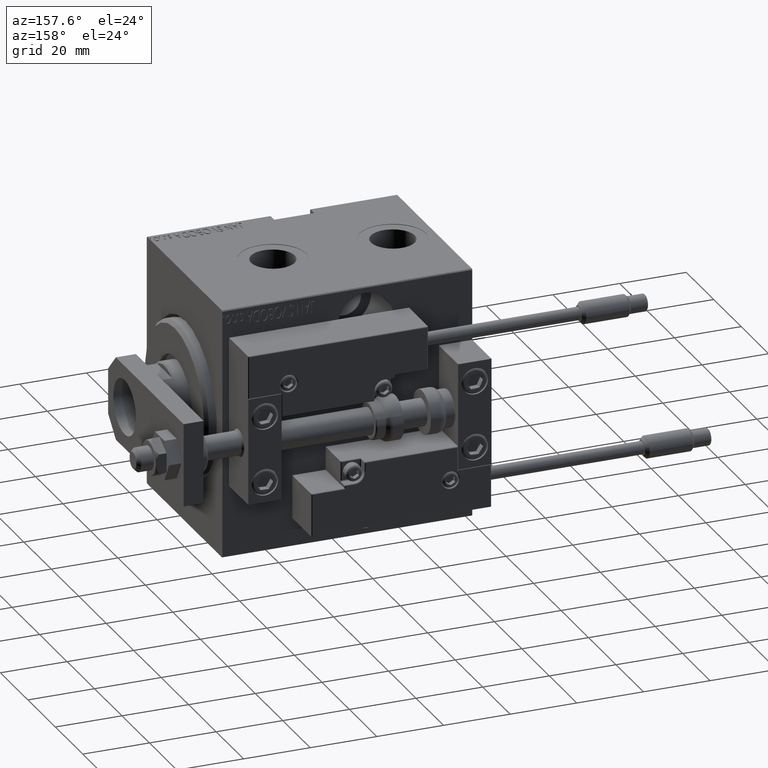
[diagram: clean part render]
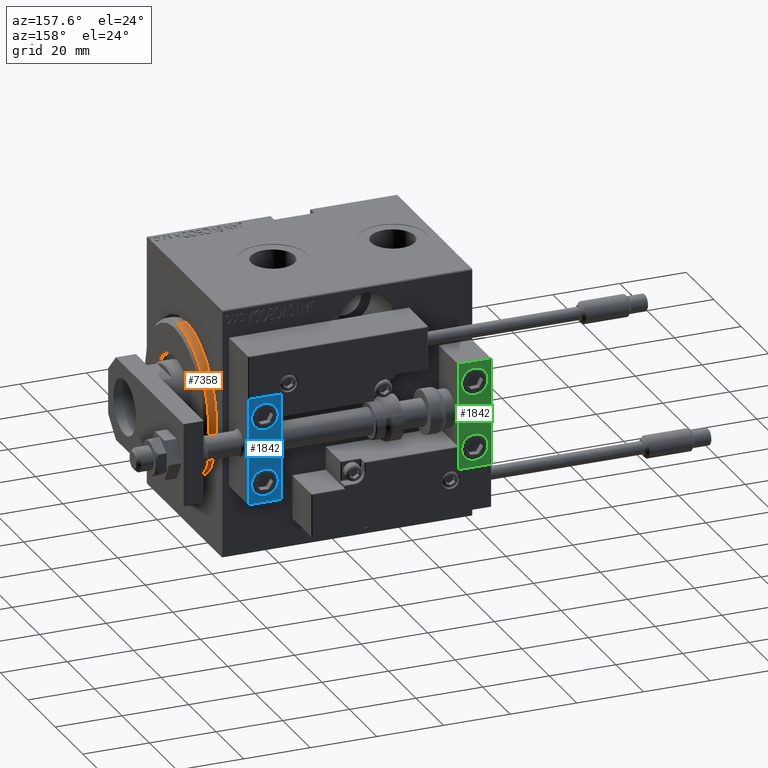
[diagram: same view with three faces highlighted in distinct colors, each labeled with its STEP entity id]
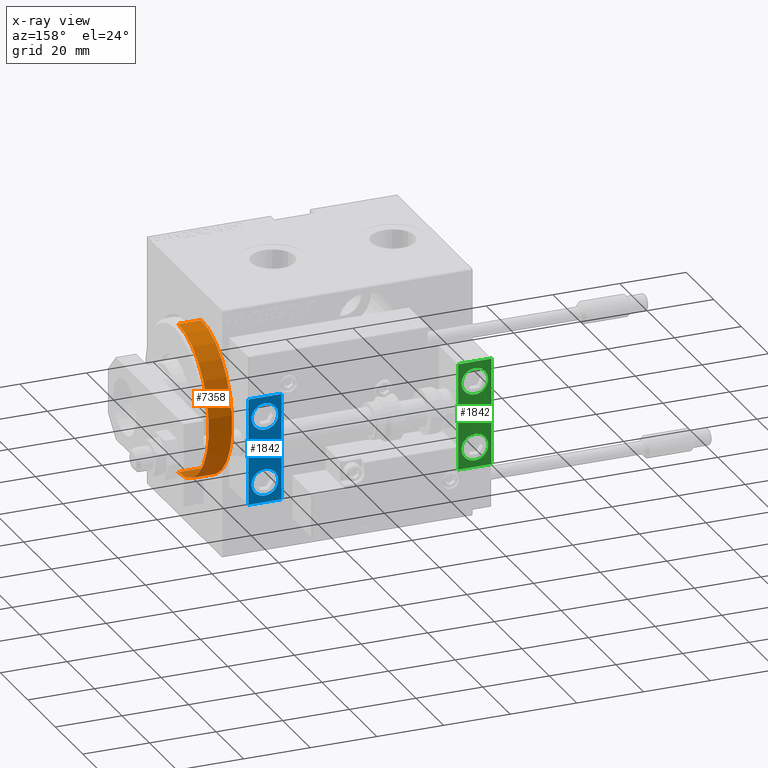
[diagram: x-ray of the same camera — body ghosted, the three highlighted faces saturated]
A machine part, auxiliary view with three faces highlighted in distinct colors.
The next image is the same camera in x-ray (body ghosted, the three faces saturated) — at least one of them is partly hidden behind the body in this view.
Their STEP definitions:

[orange] entity #7358 — the highlighted cylindrical surface (partial cylindrical patch) has radius 22.5 mm, axis along (-1, -0, -0).
#305 = CARTESIAN_POINT ( 'NONE',  ( -5.000000000000000000, 0.000000000000000000, 22.50000000000000355 ) ) ;
#1200 = AXIS2_PLACEMENT_3D ( 'NONE', #38556, #22485, #41922 ) ;
#1784 = ORIENTED_EDGE ( 'NONE', *, *, #48581, .T. ) ;
#5462 = CARTESIAN_POINT ( 'NONE',  ( 2.000000000000006217, 2.755455298081545172E-15, -22.50000000000000355 ) ) ;
#5526 = EDGE_CURVE ( 'NONE', #10065, #48900, #38126, .T. ) ;
#7358 = ADVANCED_FACE ( 'NONE', ( #15023 ), #31580, .T. ) ;
#9229 = AXIS2_PLACEMENT_3D ( 'NONE', #26687, #43495, #47113 ) ;
#9852 = VECTOR ( 'NONE', #21482, 1000.000000000000000 ) ;
#10065 = VERTEX_POINT ( 'NONE', #43915 ) ;
#15023 = FACE_OUTER_BOUND ( 'NONE', #46883, .T. ) ;
#15812 = CARTESIAN_POINT ( 'NONE',  ( -5.000000000000000000, 0.000000000000000000, 0.000000000000000000 ) ) ;
#21482 = DIRECTION ( 'NONE',  ( -1.000000000000000000, -0.000000000000000000, -0.000000000000000000 ) ) ;
#22425 = ORIENTED_EDGE ( 'NONE', *, *, #29248, .T. ) ;
#22485 = DIRECTION ( 'NONE',  ( -1.000000000000000000, 0.000000000000000000, 0.000000000000000000 ) ) ;
#25883 = CARTESIAN_POINT ( 'NONE',  ( 3.000000000000000000, 2.755455298081545172E-15, -22.50000000000000355 ) ) ;
#26068 = CARTESIAN_POINT ( 'NONE',  ( 2.000000000000006217, 0.000000000000000000, 22.50000000000000355 ) ) ;
#26687 = CARTESIAN_POINT ( 'NONE',  ( 3.000000000000000000, 0.000000000000000000, 0.000000000000000000 ) ) ;
#27146 = VERTEX_POINT ( 'NONE', #5462 ) ;
#27631 = DIRECTION ( 'NONE',  ( -1.000000000000000000, -0.000000000000000000, -0.000000000000000000 ) ) ;
#28407 = LINE ( 'NONE', #47303, #36505 ) ;
#29248 = EDGE_CURVE ( 'NONE', #27146, #10065, #49178, .T. ) ;
#29825 = AXIS2_PLACEMENT_3D ( 'NONE', #15812, #31600, #34998 ) ;
#31580 = CYLINDRICAL_SURFACE ( 'NONE', #9229, 22.50000000000000355 ) ;
#31600 = DIRECTION ( 'NONE',  ( 1.000000000000000000, 0.000000000000000000, 0.000000000000000000 ) ) ;
#34998 = DIRECTION ( 'NONE',  ( 0.000000000000000000, 0.000000000000000000, -1.000000000000000000 ) ) ;
#36505 = VECTOR ( 'NONE', #27631, 1000.000000000000000 ) ;
#37567 = ORIENTED_EDGE ( 'NONE', *, *, #37659, .F. ) ;
#37659 = EDGE_CURVE ( 'NONE', #45143, #48900, #28407, .T. ) ;
#38126 = CIRCLE ( 'NONE', #29825, 22.50000000000000355 ) ;
#38556 = CARTESIAN_POINT ( 'NONE',  ( 2.000000000000006217, 0.000000000000000000, 0.000000000000000000 ) ) ;
#40022 = ORIENTED_EDGE ( 'NONE', *, *, #5526, .T. ) ;
#41766 = CIRCLE ( 'NONE', #1200, 22.50000000000000355 ) ;
#41922 = DIRECTION ( 'NONE',  ( 0.000000000000000000, 0.000000000000000000, -1.000000000000000000 ) ) ;
#43495 = DIRECTION ( 'NONE',  ( -1.000000000000000000, -0.000000000000000000, -0.000000000000000000 ) ) ;
#43915 = CARTESIAN_POINT ( 'NONE',  ( -5.000000000000000000, 2.755455298081545172E-15, -22.50000000000000355 ) ) ;
#45143 = VERTEX_POINT ( 'NONE', #26068 ) ;
#46883 = EDGE_LOOP ( 'NONE', ( #1784, #22425, #40022, #37567 ) ) ;
#47113 = DIRECTION ( 'NONE',  ( 0.000000000000000000, 0.000000000000000000, 1.000000000000000000 ) ) ;
#47303 = CARTESIAN_POINT ( 'NONE',  ( 3.000000000000000000, 0.000000000000000000, 22.50000000000000355 ) ) ;
#48581 = EDGE_CURVE ( 'NONE', #45143, #27146, #41766, .T. ) ;
#48900 = VERTEX_POINT ( 'NONE', #305 ) ;
#49178 = LINE ( 'NONE', #25883, #9852 ) ;

[blue] entity #1842 — the highlighted planar face has unit normal (0, 1, 0).
#1092 = DIRECTION ( 'NONE',  ( 1.848892746611746419E-32, -1.000000000000000000, 6.616381192988677562E-17 ) ) ;
#1608 = DIRECTION ( 'NONE',  ( 0.000000000000000000, 0.000000000000000000, 1.000000000000000000 ) ) ;
#1842 = ADVANCED_FACE ( 'NONE', ( #43465, #31045, #3838 ), #51219, .T. ) ;
#2132 = DIRECTION ( 'NONE',  ( 0.000000000000000000, 0.000000000000000000, 1.000000000000000000 ) ) ;
#2171 = ORIENTED_EDGE ( 'NONE', *, *, #46695, .T. ) ;
#2429 = DIRECTION ( 'NONE',  ( 1.848892746611746419E-32, -1.000000000000000000, 6.616381192988677562E-17 ) ) ;
#3474 = VERTEX_POINT ( 'NONE', #34525 ) ;
#3838 = FACE_BOUND ( 'NONE', #3885, .T. ) ;
#3885 = EDGE_LOOP ( 'NONE', ( #2171, #11225 ) ) ;
#6066 = DIRECTION ( 'NONE',  ( 0.000000000000000000, 0.000000000000000000, 1.000000000000000000 ) ) ;
#6107 = EDGE_LOOP ( 'NONE', ( #7476, #34193 ) ) ;
#7476 = ORIENTED_EDGE ( 'NONE', *, *, #18721, .F. ) ;
#8197 = VERTEX_POINT ( 'NONE', #37401 ) ;
#8604 = CIRCLE ( 'NONE', #18503, 4.000000000000000000 ) ;
#9644 = DIRECTION ( 'NONE',  ( 0.000000000000000000, 1.000000000000000000, -6.065466699219605527E-17 ) ) ;
#10108 = EDGE_CURVE ( 'NONE', #32959, #18848, #38309, .T. ) ;
#10170 = EDGE_CURVE ( 'NONE', #29822, #38833, #42817, .T. ) ;
#10204 = CARTESIAN_POINT ( 'NONE',  ( 0.000000000000000000, 7.000000000000000000, 15.99999999999999289 ) ) ;
#11225 = ORIENTED_EDGE ( 'NONE', *, *, #10108, .T. ) ;
#12284 = DIRECTION ( 'NONE',  ( -1.000000000000000000, -0.000000000000000000, -0.000000000000000000 ) ) ;
#14811 = CARTESIAN_POINT ( 'NONE',  ( 5.000000000000000888, 7.000000000000000888, 14.00000000000000178 ) ) ;
#15177 = EDGE_CURVE ( 'NONE', #29822, #3474, #46014, .T. ) ;
#15758 = DIRECTION ( 'NONE',  ( -0.000000000000000000, 1.000000000000000000, 0.000000000000000000 ) ) ;
#16648 = AXIS2_PLACEMENT_3D ( 'NONE', #50716, #15758, #31548 ) ;
#16707 = CARTESIAN_POINT ( 'NONE',  ( 0.000000000000000000, 7.000000000000000000, -16.00000000000000711 ) ) ;
#17168 = CARTESIAN_POINT ( 'NONE',  ( 5.000000000000000888, 6.999999999999999112, -10.00000000000000178 ) ) ;
#18450 = CARTESIAN_POINT ( 'NONE',  ( 5.000000000000000888, 6.999999999999999112, -10.00000000000000178 ) ) ;
#18503 = AXIS2_PLACEMENT_3D ( 'NONE', #24669, #1092, #48482 ) ;
#18573 = CARTESIAN_POINT ( 'NONE',  ( 10.00000000000000000, 7.000000000000000000, 15.99999999999999289 ) ) ;
#18721 = EDGE_CURVE ( 'NONE', #29738, #8197, #48367, .T. ) ;
#18848 = VERTEX_POINT ( 'NONE', #14811 ) ;
#19264 = DIRECTION ( 'NONE',  ( -1.000000000000000000, -0.000000000000000000, -0.000000000000000000 ) ) ;
#20587 = ORIENTED_EDGE ( 'NONE', *, *, #10170, .F. ) ;
#23946 = CIRCLE ( 'NONE', #42135, 4.000000000000000888 ) ;
#24669 = CARTESIAN_POINT ( 'NONE',  ( 5.000000000000000888, 7.000000000000000888, 10.00000000000000178 ) ) ;
#29669 = ORIENTED_EDGE ( 'NONE', *, *, #50427, .F. ) ;
#29738 = VERTEX_POINT ( 'NONE', #48038 ) ;
#29822 = VERTEX_POINT ( 'NONE', #33248 ) ;
#31045 = FACE_BOUND ( 'NONE', #6107, .T. ) ;
#31548 = DIRECTION ( 'NONE',  ( 0.000000000000000000, -0.000000000000000000, 1.000000000000000000 ) ) ;
#32959 = VERTEX_POINT ( 'NONE', #37939 ) ;
#33248 = CARTESIAN_POINT ( 'NONE',  ( 10.00000000000000000, 7.000000000000000000, 15.99999999999999289 ) ) ;
#33522 = VECTOR ( 'NONE', #37932, 1000.000000000000000 ) ;
#34089 = EDGE_CURVE ( 'NONE', #8197, #29738, #23946, .T. ) ;
#34193 = ORIENTED_EDGE ( 'NONE', *, *, #34089, .F. ) ;
#34384 = DIRECTION ( 'NONE',  ( 0.000000000000000000, 0.000000000000000000, -1.000000000000000000 ) ) ;
#34525 = CARTESIAN_POINT ( 'NONE',  ( 10.00000000000000000, 7.000000000000000000, -16.00000000000000711 ) ) ;
#35154 = AXIS2_PLACEMENT_3D ( 'NONE', #17168, #9644, #1608 ) ;
#36223 = ORIENTED_EDGE ( 'NONE', *, *, #15177, .T. ) ;
#37401 = CARTESIAN_POINT ( 'NONE',  ( 5.000000000000001776, 6.999999999999999112, -14.00000000000000178 ) ) ;
#37689 = CARTESIAN_POINT ( 'NONE',  ( 5.000000000000000888, 7.000000000000000888, 10.00000000000000178 ) ) ;
#37932 = DIRECTION ( 'NONE',  ( 0.000000000000000000, 0.000000000000000000, -1.000000000000000000 ) ) ;
#37939 = CARTESIAN_POINT ( 'NONE',  ( 5.000000000000001776, 7.000000000000000888, 6.000000000000000888 ) ) ;
#38152 = DIRECTION ( 'NONE',  ( 0.000000000000000000, 1.000000000000000000, -6.065466699219605527E-17 ) ) ;
#38295 = LINE ( 'NONE', #50429, #44241 ) ;
#38309 = CIRCLE ( 'NONE', #43232, 4.000000000000000000 ) ;
#38833 = VERTEX_POINT ( 'NONE', #42413 ) ;
#40292 = VERTEX_POINT ( 'NONE', #16707 ) ;
#42135 = AXIS2_PLACEMENT_3D ( 'NONE', #18450, #38152, #2132 ) ;
#42324 = CARTESIAN_POINT ( 'NONE',  ( 10.00000000000000000, 7.000000000000000000, 15.99999999999999289 ) ) ;
#42413 = CARTESIAN_POINT ( 'NONE',  ( 0.000000000000000000, 7.000000000000000000, 15.99999999999999289 ) ) ;
#42433 = VECTOR ( 'NONE', #19264, 1000.000000000000000 ) ;
#42817 = LINE ( 'NONE', #42324, #42433 ) ;
#42851 = ORIENTED_EDGE ( 'NONE', *, *, #48564, .T. ) ;
#43232 = AXIS2_PLACEMENT_3D ( 'NONE', #37689, #2429, #6066 ) ;
#43465 = FACE_OUTER_BOUND ( 'NONE', #46620, .T. ) ;
#44241 = VECTOR ( 'NONE', #12284, 1000.000000000000000 ) ;
#44244 = VECTOR ( 'NONE', #34384, 1000.000000000000000 ) ;
#45678 = LINE ( 'NONE', #10204, #33522 ) ;
#46014 = LINE ( 'NONE', #18573, #44244 ) ;
#46620 = EDGE_LOOP ( 'NONE', ( #29669, #20587, #36223, #42851 ) ) ;
#46695 = EDGE_CURVE ( 'NONE', #18848, #32959, #8604, .T. ) ;
#48038 = CARTESIAN_POINT ( 'NONE',  ( 5.000000000000000888, 6.999999999999999112, -6.000000000000000888 ) ) ;
#48367 = CIRCLE ( 'NONE', #35154, 4.000000000000000888 ) ;
#48482 = DIRECTION ( 'NONE',  ( 0.000000000000000000, 0.000000000000000000, 1.000000000000000000 ) ) ;
#48564 = EDGE_CURVE ( 'NONE', #3474, #40292, #38295, .T. ) ;
#50427 = EDGE_CURVE ( 'NONE', #38833, #40292, #45678, .T. ) ;
#50429 = CARTESIAN_POINT ( 'NONE',  ( 10.00000000000000000, 7.000000000000000000, -16.00000000000000711 ) ) ;
#50716 = CARTESIAN_POINT ( 'NONE',  ( 10.00000000000000000, 7.000000000000000000, 15.99999999999999289 ) ) ;
#51219 = PLANE ( 'NONE',  #16648 ) ;

[green] entity #1842 — the highlighted planar face has unit normal (-0, 1, -0).
#1092 = DIRECTION ( 'NONE',  ( 1.848892746611746419E-32, -1.000000000000000000, 6.616381192988677562E-17 ) ) ;
#1608 = DIRECTION ( 'NONE',  ( 0.000000000000000000, 0.000000000000000000, 1.000000000000000000 ) ) ;
#1842 = ADVANCED_FACE ( 'NONE', ( #43465, #31045, #3838 ), #51219, .T. ) ;
#2132 = DIRECTION ( 'NONE',  ( 0.000000000000000000, 0.000000000000000000, 1.000000000000000000 ) ) ;
#2171 = ORIENTED_EDGE ( 'NONE', *, *, #46695, .T. ) ;
#2429 = DIRECTION ( 'NONE',  ( 1.848892746611746419E-32, -1.000000000000000000, 6.616381192988677562E-17 ) ) ;
#3474 = VERTEX_POINT ( 'NONE', #34525 ) ;
#3838 = FACE_BOUND ( 'NONE', #3885, .T. ) ;
#3885 = EDGE_LOOP ( 'NONE', ( #2171, #11225 ) ) ;
#6066 = DIRECTION ( 'NONE',  ( 0.000000000000000000, 0.000000000000000000, 1.000000000000000000 ) ) ;
#6107 = EDGE_LOOP ( 'NONE', ( #7476, #34193 ) ) ;
#7476 = ORIENTED_EDGE ( 'NONE', *, *, #18721, .F. ) ;
#8197 = VERTEX_POINT ( 'NONE', #37401 ) ;
#8604 = CIRCLE ( 'NONE', #18503, 4.000000000000000000 ) ;
#9644 = DIRECTION ( 'NONE',  ( 0.000000000000000000, 1.000000000000000000, -6.065466699219605527E-17 ) ) ;
#10108 = EDGE_CURVE ( 'NONE', #32959, #18848, #38309, .T. ) ;
#10170 = EDGE_CURVE ( 'NONE', #29822, #38833, #42817, .T. ) ;
#10204 = CARTESIAN_POINT ( 'NONE',  ( 0.000000000000000000, 7.000000000000000000, 15.99999999999999289 ) ) ;
#11225 = ORIENTED_EDGE ( 'NONE', *, *, #10108, .T. ) ;
#12284 = DIRECTION ( 'NONE',  ( -1.000000000000000000, -0.000000000000000000, -0.000000000000000000 ) ) ;
#14811 = CARTESIAN_POINT ( 'NONE',  ( 5.000000000000000888, 7.000000000000000888, 14.00000000000000178 ) ) ;
#15177 = EDGE_CURVE ( 'NONE', #29822, #3474, #46014, .T. ) ;
#15758 = DIRECTION ( 'NONE',  ( -0.000000000000000000, 1.000000000000000000, 0.000000000000000000 ) ) ;
#16648 = AXIS2_PLACEMENT_3D ( 'NONE', #50716, #15758, #31548 ) ;
#16707 = CARTESIAN_POINT ( 'NONE',  ( 0.000000000000000000, 7.000000000000000000, -16.00000000000000711 ) ) ;
#17168 = CARTESIAN_POINT ( 'NONE',  ( 5.000000000000000888, 6.999999999999999112, -10.00000000000000178 ) ) ;
#18450 = CARTESIAN_POINT ( 'NONE',  ( 5.000000000000000888, 6.999999999999999112, -10.00000000000000178 ) ) ;
#18503 = AXIS2_PLACEMENT_3D ( 'NONE', #24669, #1092, #48482 ) ;
#18573 = CARTESIAN_POINT ( 'NONE',  ( 10.00000000000000000, 7.000000000000000000, 15.99999999999999289 ) ) ;
#18721 = EDGE_CURVE ( 'NONE', #29738, #8197, #48367, .T. ) ;
#18848 = VERTEX_POINT ( 'NONE', #14811 ) ;
#19264 = DIRECTION ( 'NONE',  ( -1.000000000000000000, -0.000000000000000000, -0.000000000000000000 ) ) ;
#20587 = ORIENTED_EDGE ( 'NONE', *, *, #10170, .F. ) ;
#23946 = CIRCLE ( 'NONE', #42135, 4.000000000000000888 ) ;
#24669 = CARTESIAN_POINT ( 'NONE',  ( 5.000000000000000888, 7.000000000000000888, 10.00000000000000178 ) ) ;
#29669 = ORIENTED_EDGE ( 'NONE', *, *, #50427, .F. ) ;
#29738 = VERTEX_POINT ( 'NONE', #48038 ) ;
#29822 = VERTEX_POINT ( 'NONE', #33248 ) ;
#31045 = FACE_BOUND ( 'NONE', #6107, .T. ) ;
#31548 = DIRECTION ( 'NONE',  ( 0.000000000000000000, -0.000000000000000000, 1.000000000000000000 ) ) ;
#32959 = VERTEX_POINT ( 'NONE', #37939 ) ;
#33248 = CARTESIAN_POINT ( 'NONE',  ( 10.00000000000000000, 7.000000000000000000, 15.99999999999999289 ) ) ;
#33522 = VECTOR ( 'NONE', #37932, 1000.000000000000000 ) ;
#34089 = EDGE_CURVE ( 'NONE', #8197, #29738, #23946, .T. ) ;
#34193 = ORIENTED_EDGE ( 'NONE', *, *, #34089, .F. ) ;
#34384 = DIRECTION ( 'NONE',  ( 0.000000000000000000, 0.000000000000000000, -1.000000000000000000 ) ) ;
#34525 = CARTESIAN_POINT ( 'NONE',  ( 10.00000000000000000, 7.000000000000000000, -16.00000000000000711 ) ) ;
#35154 = AXIS2_PLACEMENT_3D ( 'NONE', #17168, #9644, #1608 ) ;
#36223 = ORIENTED_EDGE ( 'NONE', *, *, #15177, .T. ) ;
#37401 = CARTESIAN_POINT ( 'NONE',  ( 5.000000000000001776, 6.999999999999999112, -14.00000000000000178 ) ) ;
#37689 = CARTESIAN_POINT ( 'NONE',  ( 5.000000000000000888, 7.000000000000000888, 10.00000000000000178 ) ) ;
#37932 = DIRECTION ( 'NONE',  ( 0.000000000000000000, 0.000000000000000000, -1.000000000000000000 ) ) ;
#37939 = CARTESIAN_POINT ( 'NONE',  ( 5.000000000000001776, 7.000000000000000888, 6.000000000000000888 ) ) ;
#38152 = DIRECTION ( 'NONE',  ( 0.000000000000000000, 1.000000000000000000, -6.065466699219605527E-17 ) ) ;
#38295 = LINE ( 'NONE', #50429, #44241 ) ;
#38309 = CIRCLE ( 'NONE', #43232, 4.000000000000000000 ) ;
#38833 = VERTEX_POINT ( 'NONE', #42413 ) ;
#40292 = VERTEX_POINT ( 'NONE', #16707 ) ;
#42135 = AXIS2_PLACEMENT_3D ( 'NONE', #18450, #38152, #2132 ) ;
#42324 = CARTESIAN_POINT ( 'NONE',  ( 10.00000000000000000, 7.000000000000000000, 15.99999999999999289 ) ) ;
#42413 = CARTESIAN_POINT ( 'NONE',  ( 0.000000000000000000, 7.000000000000000000, 15.99999999999999289 ) ) ;
#42433 = VECTOR ( 'NONE', #19264, 1000.000000000000000 ) ;
#42817 = LINE ( 'NONE', #42324, #42433 ) ;
#42851 = ORIENTED_EDGE ( 'NONE', *, *, #48564, .T. ) ;
#43232 = AXIS2_PLACEMENT_3D ( 'NONE', #37689, #2429, #6066 ) ;
#43465 = FACE_OUTER_BOUND ( 'NONE', #46620, .T. ) ;
#44241 = VECTOR ( 'NONE', #12284, 1000.000000000000000 ) ;
#44244 = VECTOR ( 'NONE', #34384, 1000.000000000000000 ) ;
#45678 = LINE ( 'NONE', #10204, #33522 ) ;
#46014 = LINE ( 'NONE', #18573, #44244 ) ;
#46620 = EDGE_LOOP ( 'NONE', ( #29669, #20587, #36223, #42851 ) ) ;
#46695 = EDGE_CURVE ( 'NONE', #18848, #32959, #8604, .T. ) ;
#48038 = CARTESIAN_POINT ( 'NONE',  ( 5.000000000000000888, 6.999999999999999112, -6.000000000000000888 ) ) ;
#48367 = CIRCLE ( 'NONE', #35154, 4.000000000000000888 ) ;
#48482 = DIRECTION ( 'NONE',  ( 0.000000000000000000, 0.000000000000000000, 1.000000000000000000 ) ) ;
#48564 = EDGE_CURVE ( 'NONE', #3474, #40292, #38295, .T. ) ;
#50427 = EDGE_CURVE ( 'NONE', #38833, #40292, #45678, .T. ) ;
#50429 = CARTESIAN_POINT ( 'NONE',  ( 10.00000000000000000, 7.000000000000000000, -16.00000000000000711 ) ) ;
#50716 = CARTESIAN_POINT ( 'NONE',  ( 10.00000000000000000, 7.000000000000000000, 15.99999999999999289 ) ) ;
#51219 = PLANE ( 'NONE',  #16648 ) ;